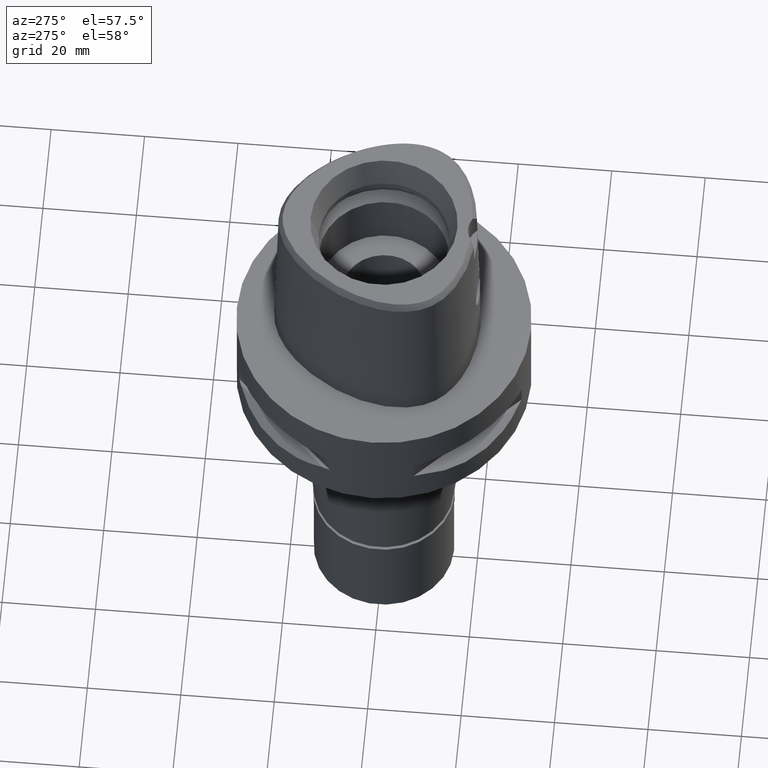
[diagram: clean part render]
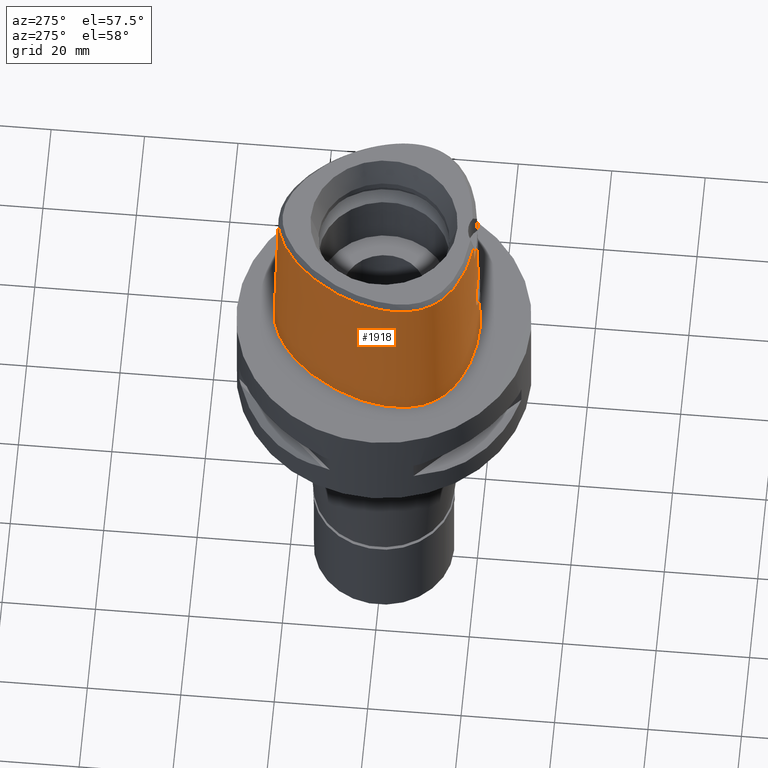
[diagram: same view with one face highlighted and labeled with its STEP entity id]
A machine part, auxiliary view. The second image highlights one B-rep face of the part: STEP entity #1918.
In plain terms, the highlighted face is a freeform B-spline surface patch.
Its self-contained STEP definition (entity closure, byte-faithful):
#20 = CARTESIAN_POINT ( 'NONE',  ( -3.520475118946976512, -20.16064927175088783, 13.49656734865700791 ) ) ;
#43 = CARTESIAN_POINT ( 'NONE',  ( -3.848403410397718716, -20.04310851184500208, 16.79149714040716290 ) ) ;
#56 = EDGE_CURVE ( 'NONE', #2543, #1512, #4088, .T. ) ;
#73 = CARTESIAN_POINT ( 'NONE',  ( -3.686560471764692259, -20.05088322548417423, 17.17709135335521253 ) ) ;
#98 = CARTESIAN_POINT ( 'NONE',  ( -2.852856104025950579, -20.09931387729060859, 18.37467926461776457 ) ) ;
#117 = CARTESIAN_POINT ( 'NONE',  ( -18.58171406201999787, -14.18198046186000028, -0.7304374680613000548 ) ) ;
#147 = CARTESIAN_POINT ( 'NONE',  ( -1.886862291950999859, -20.71358859382999640, -0.7304374680613000548 ) ) ;
#151 = CARTESIAN_POINT ( 'NONE',  ( -0.5985508230240998984, 23.20171286479000017, 11.93047864500000088 ) ) ;
#170 = CARTESIAN_POINT ( 'NONE',  ( -1.836486906114000117, -19.76356485051999812, 37.25231087112999973 ) ) ;
#194 = CARTESIAN_POINT ( 'NONE',  ( -19.81622840150000187, -11.44090480076000027, 24.59139475806000164 ) ) ;
#196 = CARTESIAN_POINT ( 'NONE',  ( -1.592612062464774825, -20.34460894491120087, 11.77623291199194355 ) ) ;
#210 = EDGE_CURVE ( 'NONE', #2037, #1228, #1054, .T. ) ;
#223 = CARTESIAN_POINT ( 'NONE',  ( -14.52531267946000071, -16.95413756377999803, 11.93047864500000088 ) ) ;
#228 = CARTESIAN_POINT ( 'NONE',  ( -1.574545528900000111E-11, 22.56201468012000078, 36.52186680743999858 ) ) ;
#249 = CARTESIAN_POINT ( 'NONE',  ( -21.97832646824619829, -0.2810937516994880814, 3.885600670697989673E-07 ) ) ;
#252 = CARTESIAN_POINT ( 'NONE',  ( -10.75753573473999936, 19.18839675345000018, -0.7304374680613000548 ) ) ;
#256 = CARTESIAN_POINT ( 'NONE',  ( 0.0000000000000000000, -20.18628283968999781, 19.55000000000000071 ) ) ;
#260 = EDGE_CURVE ( 'NONE', #941, #4048, #4864, .T. ) ;
#264 = ORIENTED_EDGE ( 'NONE', *, *, #2806, .F. ) ;
#330 = CARTESIAN_POINT ( 'NONE',  ( -20.09619618741216840, -10.23243843868544189, 36.52186244848004293 ) ) ;
#349 = CARTESIAN_POINT ( 'NONE',  ( -18.90964971338053147, -12.28759719904723369, 36.52186244848004293 ) ) ;
#375 = CARTESIAN_POINT ( 'NONE',  ( -4.050018014422889223, -20.05167593067619691, 15.52805627100407548 ) ) ;
#402 = CARTESIAN_POINT ( 'NONE',  ( -3.748882549353985016, -20.12487725615871881, 13.96753193210201438 ) ) ;
#427 = CARTESIAN_POINT ( 'NONE',  ( -4.049663826248561804, -20.05088590020227457, 15.56119206774791053 ) ) ;
#448 = CARTESIAN_POINT ( 'NONE',  ( -2.823299992937055691, -20.10104229143708565, 18.40378355436299174 ) ) ;
#473 = CARTESIAN_POINT ( 'NONE',  ( -1.533377486156251246, -20.16026360294686981, 19.24851053760684749 ) ) ;
#493 = CARTESIAN_POINT ( 'NONE',  ( -20.07948520509000190, -10.22500076556000081, 37.25231087112999973 ) ) ;
#514 = CARTESIAN_POINT ( 'NONE',  ( -16.77374388856000209, -15.44292480528000056, 11.93047864500000088 ) ) ;
#538 = EDGE_CURVE ( 'NONE', #1228, #2155, #3386, .T. ) ;
#542 = CARTESIAN_POINT ( 'NONE',  ( -11.13012658785000042, -18.61140124925999828, 11.93047864500000088 ) ) ;
#567 = CARTESIAN_POINT ( 'NONE',  ( -19.86834450654999884, 4.339653738224999557, 37.25231087112999973 ) ) ;
#571 = CARTESIAN_POINT ( 'NONE',  ( -2.647727988100297303, -20.26593689667734566, 12.42012271607875640 ) ) ;
#592 = CARTESIAN_POINT ( 'NONE',  ( -6.344715575757000181, -20.31619964444000104, -0.7304374680613000548 ) ) ;
#620 = CARTESIAN_POINT ( 'NONE',  ( -18.06826687681904176, 10.43171874512409936, 3.885600670697989673E-07 ) ) ;
#625 = CARTESIAN_POINT ( 'NONE',  ( -4.750826278092000088, 21.65775820190999923, 37.25231087112999973 ) ) ;
#647 = CARTESIAN_POINT ( 'NONE',  ( -20.34961797713979337, -11.74885741700608222, 3.885600670697989673E-07 ) ) ;
#672 = CARTESIAN_POINT ( 'NONE',  ( -2.376843896518209931, 22.39422508474159201, 36.52186244848004293 ) ) ;
#699 = CARTESIAN_POINT ( 'NONE',  ( -21.07430010672547382, -0.4408303445193073600, 36.52186244848004293 ) ) ;
#713 = CARTESIAN_POINT ( 'NONE',  ( -14.40795638211908880, 15.64093749369347641, 3.885600670697989673E-07 ) ) ;
#738 = DIRECTION ( 'NONE',  ( -8.648272217531810680E-13, -0.02499051295360945474, -0.9996876883618780463 ) ) ;
#739 = CARTESIAN_POINT ( 'NONE',  ( -3.258446753581195843, -20.07522384658359016, 17.91983021284886846 ) ) ;
#766 = CARTESIAN_POINT ( 'NONE',  ( -1.517038990534186560, -20.16080850842839922, 19.25515252244159115 ) ) ;
#797 = CARTESIAN_POINT ( 'NONE',  ( -3.623054736480679328, -20.05423874947347684, 17.31100359227539087 ) ) ;
#820 = CARTESIAN_POINT ( 'NONE',  ( -1.656252726929893448, -20.15609978928698354, 19.19765142506412658 ) ) ;
#847 = CARTESIAN_POINT ( 'NONE',  ( -3.649474620159721017, -20.05281468735726591, 17.25706831817002396 ) ) ;
#869 = CARTESIAN_POINT ( 'NONE',  ( -17.25769872667000016, 9.963736656807000713, 37.25231087112999973 ) ) ;
#892 = CARTESIAN_POINT ( 'NONE',  ( -11.23887130070999874, -18.91049775515000064, -0.7304374680613000548 ) ) ;
#894 = CARTESIAN_POINT ( 'NONE',  ( -3.024127618929793648, -20.22444760030290212, 12.80466032897619222 ) ) ;
#915 = CARTESIAN_POINT ( 'NONE',  ( -16.97022730782000366, -15.69280482697000068, -0.7304374680613000548 ) ) ;
#917 = CARTESIAN_POINT ( 'NONE',  ( -1.678454493247613311, -20.33967188086282363, 11.81405957882466673 ) ) ;
#941 = VERTEX_POINT ( 'NONE', #2462 ) ;
#948 = CARTESIAN_POINT ( 'NONE',  ( -20.96392263605000039, -8.820258354626000497, 24.59139475806000164 ) ) ;
#951 = CARTESIAN_POINT ( 'NONE',  ( -3.215358272887881341, -20.20174660046962245, 13.03391498473813748 ) ) ;
#952 = CARTESIAN_POINT ( 'NONE',  ( 0.4569144609274999880, 22.85341810850000144, 24.59139475806000164 ) ) ;
#970 = CARTESIAN_POINT ( 'NONE',  ( 2.041042029990999821E-08, -19.88004246002000031, 31.80000004972000127 ) ) ;
#973 = CARTESIAN_POINT ( 'NONE',  ( -16.38077705003999895, -14.94316476189000120, 37.25231087112999973 ) ) ;
#977 = CARTESIAN_POINT ( 'NONE',  ( -0.5821289336299999562, 22.88453108559999905, 24.59139475806000164 ) ) ;
#1025 = CARTESIAN_POINT ( 'NONE',  ( -16.95889171990959809, -15.67838866420374266, 3.885600670697989673E-07 ) ) ;
#1048 = CARTESIAN_POINT ( 'NONE',  ( -2.113823672487484373, -20.67499999028822799, 3.885600670697989673E-07 ) ) ;
#1054 = B_SPLINE_CURVE_WITH_KNOTS ( 'NONE', 3,
 ( #1807, #3430, #1075, #1836, #4526, #3362, #1102, #349, #3339, #330, #1877, #2580, #4172, #699, #4977, #1857, #1502, #4113, #3391, #4475, #672, #4150, #1433 ),
 .UNSPECIFIED., .F., .F.,
 ( 4, 1, 1, 1, 1, 1, 1, 1, 1, 1, 1, 1, 1, 1, 1, 1, 1, 1, 1, 1, 4 ),
 ( 0.0000000000000000000, 0.03580973941716571185, 0.1234633994701219151, 0.1672902294965474546, 0.2111170595229729940, 0.2549438895495037549, 0.2768573045627165108, 0.2987707195758241285, 0.3206841345891420225, 0.3425975496023548894, 0.3864243796287802901, 0.4302512096552058574, 0.4740780396816314246, 0.5617316997345875862, 0.6493853597875438588, 0.7370390198403948823, 0.8246926798932460168, 0.8685195099196715285, 0.9123463399461285706, 0.9561731699725646294, 1.000000000000000000 ),
 .UNSPECIFIED. ) ;
#1075 = CARTESIAN_POINT ( 'NONE',  ( -7.300578999876935704, -19.07170748891635270, 36.52186244848004293 ) ) ;
#1102 = CARTESIAN_POINT ( 'NONE',  ( -17.90324032096463114, -13.53935111954962700, 36.52186244848004293 ) ) ;
#1124 = B_SPLINE_CURVE_WITH_KNOTS ( 'NONE', 3,
 ( #3883, #1851, #3353, #4948, #1466, #4877, #713, #620, #4565, #249, #3018, #1781, #2950, #4519, #647, #2207, #4491, #1025, #2185, #2573, #4127, #1048, #3742 ),
 .UNSPECIFIED., .F., .F.,
 ( 4, 1, 1, 1, 1, 1, 1, 1, 1, 1, 1, 1, 1, 1, 1, 1, 1, 1, 1, 1, 4 ),
 ( 0.0000000000000000000, 0.04166666666755999837, 0.08333333333417000666, 0.1250000000007999990, 0.1666666666674000152, 0.2500000000006000200, 0.3333333333337999971, 0.4166666666671000052, 0.5000000000004000134, 0.5416666666670000296, 0.5833333333336000459, 0.6250000000001999512, 0.6458333333335000148, 0.6666666666668999985, 0.6875000000001000311, 0.7083333333333999837, 0.7500000000001000311, 0.7916666666667000474, 0.8333333333333000637, 0.9166666666666000163, 1.000000000000000000 ),
 .UNSPECIFIED. ) ;
#1125 = CARTESIAN_POINT ( 'NONE',  ( -4.038031914720375148, -20.04584209172325515, 15.81781984753358117 ) ) ;
#1147 = CARTESIAN_POINT ( 'NONE',  ( -3.704467467890589560, -20.04996865237293591, 17.13733399074684627 ) ) ;
#1161 = ORIENTED_EDGE ( 'NONE', *, *, #56, .T. ) ;
#1173 = CARTESIAN_POINT ( 'NONE',  ( -3.438474044887640524, -20.17226853620277893, 13.35950353148250613 ) ) ;
#1183 = ORIENTED_EDGE ( 'NONE', *, *, #260, .F. ) ;
#1201 = CARTESIAN_POINT ( 'NONE',  ( -1.492522727690081652, -20.16161937968068329, 19.26502569008682286 ) ) ;
#1211 = CARTESIAN_POINT ( 'NONE',  ( -3.637738201363999835, -19.56971413236999879, 36.52186244848000030 ) ) ;
#1223 = CARTESIAN_POINT ( 'NONE',  ( -2.360389010911050800, -20.12578017861218882, 18.79373387522195316 ) ) ;
#1228 = VERTEX_POINT ( 'NONE', #4660 ) ;
#1243 = CARTESIAN_POINT ( 'NONE',  ( -22.26285556008000199, -4.100361500079999999, -0.7304374680613000548 ) ) ;
#1249 = CARTESIAN_POINT ( 'NONE',  ( -1.975954942183464347, -20.32065689222574889, 11.96260358355354825 ) ) ;
#1270 = CARTESIAN_POINT ( 'NONE',  ( -16.57726046929999697, -15.19304478357999955, 24.59139475806000164 ) ) ;
#1275 = CARTESIAN_POINT ( 'NONE',  ( 0.4823619555376999490, 23.48603817685999928, -0.7304374680613000548 ) ) ;
#1294 = CARTESIAN_POINT ( 'NONE',  ( -21.57281238754000086, -9.001246193674999674, -0.7304374680613000548 ) ) ;
#1319 = CARTESIAN_POINT ( 'NONE',  ( -21.99640701070999782, -0.2778990171513999741, -0.7304374680613000548 ) ) ;
#1321 = CARTESIAN_POINT ( 'NONE',  ( -0.5047993661862985038, -20.38876923347999792, 11.44999999999999929 ) ) ;
#1349 = CARTESIAN_POINT ( 'NONE',  ( -20.16779751908000051, 4.447573709547000043, 24.59139475806000164 ) ) ;
#1351 = CARTESIAN_POINT ( 'NONE',  ( -2.904838724128466332, -20.23782704190360349, 12.67778573503113293 ) ) ;
#1378 = DIRECTION ( 'NONE',  ( 2.016568643993959699E-12, 0.02499051290953949525, -0.9996876883629797206 ) ) ;
#1400 = CARTESIAN_POINT ( 'NONE',  ( -5.105252914130000264, 22.54305023747000192, -0.7304374680613000548 ) ) ;
#1405 = CARTESIAN_POINT ( 'NONE',  ( -0.8941136475798195926, -20.17742596329177474, 19.45229334933474519 ) ) ;
#1433 = CARTESIAN_POINT ( 'NONE',  ( -1.574545528900000111E-11, 22.56201468012000078, 36.52186680743999858 ) ) ;
#1466 = CARTESIAN_POINT ( 'NONE',  ( -7.571159429429436649, 21.31457030409382014, 3.885600670697989673E-07 ) ) ;
#1502 = CARTESIAN_POINT ( 'NONE',  ( -13.70645028111149344, 15.04851272300912335, 36.52186244848004293 ) ) ;
#1509 = CARTESIAN_POINT ( 'NONE',  ( 6.819697653479363616E-09, -19.98212988583497207, 27.71666688228305730 ) ) ;
#1512 = VERTEX_POINT ( 'NONE', #4674 ) ;
#1527 = CARTESIAN_POINT ( 'NONE',  ( -2.187955111052514390, -20.13397228737158784, 18.90818030783675852 ) ) ;
#1550 = CARTESIAN_POINT ( 'NONE',  ( -3.466483550186856721, -20.16833646136317881, 13.40542637771266321 ) ) ;
#1575 = CARTESIAN_POINT ( 'NONE',  ( -1.320565687276267886, -20.16697761691574087, 19.32976498245970376 ) ) ;
#1604 = CARTESIAN_POINT ( 'NONE',  ( -3.732557508995177908, -20.04859144260194626, 17.07180291399460259 ) ) ;
#1628 = CARTESIAN_POINT ( 'NONE',  ( -1.411580633884000040E-12, -20.38876923348000147, 11.44999999999999929 ) ) ;
#1650 = CARTESIAN_POINT ( 'NONE',  ( -18.08416037858000180, 10.44089486947999923, -0.7304374680613000548 ) ) ;
#1654 = CARTESIAN_POINT ( 'NONE',  ( 0.7042335330635999258, 23.15549829226000256, 11.93047864500000088 ) ) ;
#1681 = CARTESIAN_POINT ( 'NONE',  ( -20.46725053161000218, 4.555493680868999640, 11.93047864500000088 ) ) ;
#1685 = CARTESIAN_POINT ( 'NONE',  ( -1.758544761670471024, -20.33485355119347560, 11.85123508312324958 ) ) ;
#1705 = CARTESIAN_POINT ( 'NONE',  ( -14.17879765875000153, 15.44741201480000115, 11.93047864500000088 ) ) ;
#1712 = CARTESIAN_POINT ( 'NONE',  ( -1.251533273950077296, -19.88005341380023339, 31.80000012753034966 ) ) ;
#1730 = CARTESIAN_POINT ( 'NONE',  ( -17.53318594397000396, 10.12278939435999980, 24.59139475806000164 ) ) ;
#1735 = CARTESIAN_POINT ( 'NONE',  ( -2.503210923952999600, 22.99958948125999925, 11.93047864500000088 ) ) ;
#1757 = CARTESIAN_POINT ( 'NONE',  ( 0.4520368093029999979, -20.37458469269000005, 11.93047864500000088 ) ) ;
#1781 = CARTESIAN_POINT ( 'NONE',  ( -22.05732873356693347, -6.847636717361496927, 3.885600670697989673E-07 ) ) ;
#1784 = CARTESIAN_POINT ( 'NONE',  ( -10.34823249778999887, 18.70095513388999819, 24.59139475806000164 ) ) ;
#1788 = CARTESIAN_POINT ( 'NONE',  ( -0.2473412322782438943, -20.18628283969000492, 19.55000000000000071 ) ) ;
#1807 = CARTESIAN_POINT ( 'NONE',  ( -3.637738201363999835, -19.56971413236999879, 36.52186244848000030 ) ) ;
#1836 = CARTESIAN_POINT ( 'NONE',  ( -10.91891098965328055, -18.03046406390440026, 36.52186244848004293 ) ) ;
#1851 = CARTESIAN_POINT ( 'NONE',  ( -0.8548392416113345105, 23.47499999029279394, 3.885600670697989673E-07 ) ) ;
#1856 = LINE ( 'NONE', #4524, #2150 ) ;
#1857 = CARTESIAN_POINT ( 'NONE',  ( -17.27359245833522294, 9.972912913898216658, 36.52186244848004293 ) ) ;
#1867 = EDGE_LOOP ( 'NONE', ( #264, #1183, #4141, #1161, #4744, #3346, #4327, #4246 ) ) ;
#1877 = CARTESIAN_POINT ( 'NONE',  ( -20.67704215116155453, -8.734985316449400017, 36.52186244848004293 ) ) ;
#1905 = CARTESIAN_POINT ( 'NONE',  ( -3.765489374950850010, -20.12204791086956490, 14.00864527312965357 ) ) ;
#1918 = ADVANCED_FACE ( 'NONE', ( #3584 ), #3959, .T. ) ;
#1930 = CARTESIAN_POINT ( 'NONE',  ( -3.646271025386285114, -20.14180172674243963, 13.73229968810705692 ) ) ;
#1953 = EDGE_CURVE ( 'NONE', #2155, #4624, #1124, .T. ) ;
#1954 = CARTESIAN_POINT ( 'NONE',  ( -3.408875187705912690, -20.17633333109256100, 13.31312751153962637 ) ) ;
#1981 = CARTESIAN_POINT ( 'NONE',  ( -3.740129524201758038, -20.04822853724978415, 17.05370687140962715 ) ) ;
#2008 = CARTESIAN_POINT ( 'NONE',  ( -1.768917262173088201, -20.15190475906379319, 19.14568281053183441 ) ) ;
#2030 = CARTESIAN_POINT ( 'NONE',  ( -21.36961520539000148, -0.3886497559040000271, 24.59139475806000164 ) ) ;
#2032 = CARTESIAN_POINT ( 'NONE',  ( -3.388781880796851276, -20.17907268769689821, 13.28211842279060129 ) ) ;
#2037 = VERTEX_POINT ( 'NONE', #1211 ) ;
#2056 = CARTESIAN_POINT ( 'NONE',  ( -6.288476595636000255, -20.00290580763000392, 11.93047864500000088 ) ) ;
#2084 = CARTESIAN_POINT ( 'NONE',  ( -11.02138187498999855, -18.31230474335999858, 24.59139475806000164 ) ) ;
#2109 = CARTESIAN_POINT ( 'NONE',  ( -21.44619314112999930, -6.759806580765000739, 24.59139475806000164 ) ) ;
#2112 = CARTESIAN_POINT ( 'NONE',  ( -1.572984596531324719, -20.34569619827913911, 11.76794029727372859 ) ) ;
#2134 = CARTESIAN_POINT ( 'NONE',  ( -14.42198651596000047, 15.65278599908999979, -0.7304374680613000548 ) ) ;
#2150 = VECTOR ( 'NONE', #738, 1000.000000000000114 ) ;
#2155 = VERTEX_POINT ( 'NONE', #2431 ) ;
#2164 = CARTESIAN_POINT ( 'NONE',  ( -10.14358087931999997, 18.45723432412000165, 37.25231087112999973 ) ) ;
#2185 = CARTESIAN_POINT ( 'NONE',  ( -14.67337963937592349, -17.21410155403621545, 3.885600670697989673E-07 ) ) ;
#2192 = CARTESIAN_POINT ( 'NONE',  ( -1.025211814385354359, -20.17465818941732891, 19.42048404905330727 ) ) ;
#2207 = CARTESIAN_POINT ( 'NONE',  ( -19.64947365076566754, -12.82525390053001679, 3.885600670697989673E-07 ) ) ;
#2281 = CARTESIAN_POINT ( 'NONE',  ( -4.027530768679777218, -20.06783249596159990, 14.99855479655601087 ) ) ;
#2311 = CARTESIAN_POINT ( 'NONE',  ( -2.841055161952163122, -20.10000556631501922, 18.38634273630946225 ) ) ;
#2324 = CARTESIAN_POINT ( 'NONE',  ( 0.6840430852549000962, -20.68668154458000075, -0.7304374680613000548 ) ) ;
#2338 = CARTESIAN_POINT ( 'NONE',  ( -2.781497320434850984, -20.10345565782015953, 18.44409576488487801 ) ) ;
#2362 = CARTESIAN_POINT ( 'NONE',  ( -2.467128207655710170, -20.12044499745018911, 18.71456023906526056 ) ) ;
#2393 = CARTESIAN_POINT ( 'NONE',  ( -3.925407708630972881, -20.04099055260220297, 16.53138977182821279 ) ) ;
#2419 = CARTESIAN_POINT ( 'NONE',  ( -21.26836751179000018, -8.910752274150000929, 11.93047864500000088 ) ) ;
#2431 = CARTESIAN_POINT ( 'NONE',  ( 5.792640471420000553E-11, 23.47499999999000053, 1.459943277381999819E-13 ) ) ;
#2443 = CARTESIAN_POINT ( 'NONE',  ( -20.76670354412999941, 4.663413652192000214, -0.7304374680613000548 ) ) ;
#2445 = CARTESIAN_POINT ( 'NONE',  ( -1.559921522257952331, -20.34641501698343902, 11.76246137009467851 ) ) ;
#2462 = CARTESIAN_POINT ( 'NONE',  ( 0.0000000000000000000, -20.18628283968999781, 19.55000000000000071 ) ) ;
#2466 = CARTESIAN_POINT ( 'NONE',  ( -14.68244496857000136, -17.23001772569000067, -0.7304374680613000548 ) ) ;
#2477 = CARTESIAN_POINT ( 'NONE',  ( -2.503154198992945556, -19.81241979316309809, 31.80000012753034966 ) ) ;
#2496 = CARTESIAN_POINT ( 'NONE',  ( -21.68301110805000320, -0.3332743865277000284, 11.93047864500000088 ) ) ;
#2500 = CARTESIAN_POINT ( 'NONE',  ( 0.4441907136224000352, 22.53710807432000252, 37.25231087112999973 ) ) ;
#2518 = CARTESIAN_POINT ( 'NONE',  ( -19.54161198198000093, -11.28235493642000087, 37.25231087112999973 ) ) ;
#2543 = VERTEX_POINT ( 'NONE', #3316 ) ;
#2546 = CARTESIAN_POINT ( 'NONE',  ( -7.580410837477000285, 21.33037925832999804, -0.7304374680613000548 ) ) ;
#2573 = CARTESIAN_POINT ( 'NONE',  ( -11.23259756393842501, -18.89324217832330177, 3.885600670697989673E-07 ) ) ;
#2580 = CARTESIAN_POINT ( 'NONE',  ( -21.14970188363580661, -6.717195958887920426, 36.52186244848004293 ) ) ;
#2671 = CARTESIAN_POINT ( 'NONE',  ( -3.921269265875852561, -20.09311890564765335, 14.47775228275580695 ) ) ;
#2690 = CARTESIAN_POINT ( 'NONE',  ( -1.543048130381289074, -20.15993798682084304, 19.24453660913574282 ) ) ;
#2723 = CARTESIAN_POINT ( 'NONE',  ( -2.141634863663406829, -20.13611892945428750, 18.93776449056395350 ) ) ;
#2749 = CARTESIAN_POINT ( 'NONE',  ( -1.944872162933173998, -20.14473830020671130, 19.05307826098763968 ) ) ;
#2774 = CARTESIAN_POINT ( 'NONE',  ( -4.001055636210809396, -20.04208398455349993, 16.14154222857777654 ) ) ;
#2777 = CARTESIAN_POINT ( 'NONE',  ( -1.131694588379999952E-11, -20.67499999999999716, 1.488068927338999721E-13 ) ) ;
#2795 = CARTESIAN_POINT ( 'NONE',  ( -20.65879057090999993, -10.48283623374000051, 11.93047864500000088 ) ) ;
#2799 = CARTESIAN_POINT ( 'NONE',  ( -1.638635025836545855, -20.34200884320555858, 11.79610711465278428 ) ) ;
#2806 = EDGE_CURVE ( 'NONE', #4048, #4624, #1856, .T. ) ;
#2824 = CARTESIAN_POINT ( 'NONE',  ( -21.62788420033999870, -4.104079497307999702, 24.59139475806000164 ) ) ;
#2827 = CARTESIAN_POINT ( 'NONE',  ( -1.035503055403206085, -20.37488775911207739, 11.54570873351795335 ) ) ;
#2834 = B_SPLINE_CURVE_WITH_KNOTS ( 'NONE', 3,
 ( #4654, #3906, #3566, #4330 ),
 .UNSPECIFIED., .F., .F.,
 ( 4, 4 ),
 ( 0.0000000000000000000, 1.000000000000000000 ),
 .UNSPECIFIED. ) ;
#2849 = CARTESIAN_POINT ( 'NONE',  ( -21.76083721349000299, -6.805026057747000756, 11.93047864500000088 ) ) ;
#2851 = CARTESIAN_POINT ( 'NONE',  ( -3.294464282139045075, -20.19175818983876525, 13.14063372506622684 ) ) ;
#2876 = CARTESIAN_POINT ( 'NONE',  ( -20.65947776029999972, -8.729764435102000064, 37.25231087112999973 ) ) ;
#2879 = CARTESIAN_POINT ( 'NONE',  ( -2.945118222696918142, -20.23335776654030127, 12.71958560101021085 ) ) ;
#2880 = CARTESIAN_POINT ( 'NONE',  ( 0.6658293095848000220, 22.52368303396000115, 37.25231087112999973 ) ) ;
#2905 = CARTESIAN_POINT ( 'NONE',  ( -18.89485300812999924, -12.27684390041000029, 37.25231087112999973 ) ) ;
#2948 = VECTOR ( 'NONE', #1378, 1000.000000000000227 ) ;
#2950 = CARTESIAN_POINT ( 'NONE',  ( -21.55524825074957107, -8.996025387848247235, 3.885600670697989673E-07 ) ) ;
#2955 = CARTESIAN_POINT ( 'NONE',  ( -7.420053183289000209, 21.05635753066999882, 11.93047864500000088 ) ) ;
#3000 = CARTESIAN_POINT ( 'NONE',  ( 0.4560943669427999780, -20.69106767951000236, -0.7304374680613000548 ) ) ;
#3018 = CARTESIAN_POINT ( 'NONE',  ( -22.24453906880549425, -4.100468750057090439, 3.885600670697989673E-07 ) ) ;
#3057 = CARTESIAN_POINT ( 'NONE',  ( -2.095753548414849732, -20.13818364214428058, 18.96577014705865949 ) ) ;
#3063 = CARTESIAN_POINT ( 'NONE',  ( 0.0000000000000000000, -20.18628283968999781, 19.55000000000000071 ) ) ;
#3079 = CARTESIAN_POINT ( 'NONE',  ( -3.738021026999548635, -20.04832921641929389, 17.05876513949583639 ) ) ;
#3098 = CARTESIAN_POINT ( 'NONE',  ( -3.474550157058655664, -20.06258684786188340, 17.58509941785007413 ) ) ;
#3132 = CARTESIAN_POINT ( 'NONE',  ( -3.081149392577402946, -20.08583124627778460, 18.14629112890300888 ) ) ;
#3157 = CARTESIAN_POINT ( 'NONE',  ( -2.857836109606428199, -20.09902107152585771, 18.36973246307252339 ) ) ;
#3178 = CARTESIAN_POINT ( 'NONE',  ( -20.36546124054000018, -11.75800452942999996, -0.7304374680613000548 ) ) ;
#3203 = CARTESIAN_POINT ( 'NONE',  ( -19.15132538607999990, -12.46323161480999886, 24.59139475806000164 ) ) ;
#3207 = CARTESIAN_POINT ( 'NONE',  ( -2.887412005234531787, -20.23974548682601693, 12.66003157092502107 ) ) ;
#3208 = CARTESIAN_POINT ( 'NONE',  ( 0.6850314213241999184, 22.83959066311000186, 24.59139475806000164 ) ) ;
#3230 = CARTESIAN_POINT ( 'NONE',  ( -13.93560880152999992, 15.24203803051000072, 24.59139475806000164 ) ) ;
#3234 = CARTESIAN_POINT ( 'NONE',  ( -2.568271204691999987, 23.31126237870000040, -0.7304374680613000548 ) ) ;
#3253 = CARTESIAN_POINT ( 'NONE',  ( -19.40779776403000056, -12.64961932921000098, 11.93047864500000088 ) ) ;
#3280 = CARTESIAN_POINT ( 'NONE',  ( -21.05621930272000242, -0.4440251252802999704, 37.25231087112999973 ) ) ;
#3284 = CARTESIAN_POINT ( 'NONE',  ( -2.438150643213000457, 22.68791658381999810, 24.59139475806000164 ) ) ;
#3316 = CARTESIAN_POINT ( 'NONE',  ( 2.041042029990999821E-08, -19.88004246002000031, 31.80000004972000127 ) ) ;
#3332 = CARTESIAN_POINT ( 'NONE',  ( 0.6718639866852000875, -20.05378907755000029, 24.59139475806000164 ) ) ;
#3335 = CARTESIAN_POINT ( 'NONE',  ( -4.868968490105000768, 21.95285554708999953, 24.59139475806000164 ) ) ;
#3339 = CARTESIAN_POINT ( 'NONE',  ( -19.55745547455832067, -11.29150218115996296, 36.52186244848004293 ) ) ;
#3346 = ORIENTED_EDGE ( 'NONE', *, *, #210, .T. ) ;
#3353 = CARTESIAN_POINT ( 'NONE',  ( -2.564517724960374778, 23.29328124043638581, 3.885600670697989673E-07 ) ) ;
#3362 = CARTESIAN_POINT ( 'NONE',  ( -16.39211280192347786, -14.95758113319088523, 36.52186244848004293 ) ) ;
#3383 = CARTESIAN_POINT ( 'NONE',  ( 0.6657744374003000676, -19.73734284402999961, 37.25231087112999973 ) ) ;
#3386 = LINE ( 'NONE', #228, #2948 ) ;
#3391 = CARTESIAN_POINT ( 'NONE',  ( -7.108589416785278559, 20.52412325828742468, 36.52186244848004293 ) ) ;
#3403 = CARTESIAN_POINT ( 'NONE',  ( 0.4479792516632999932, -20.05810170588000219, 24.59139475806000164 ) ) ;
#3430 = CARTESIAN_POINT ( 'NONE',  ( -4.467522189395160659, -19.48130287050652854, 36.52186244848004293 ) ) ;
#3458 = CARTESIAN_POINT ( 'NONE',  ( -3.755562140673627702, -20.12374194796139193, 13.98397501487714223 ) ) ;
#3476 = EDGE_CURVE ( 'NONE', #2543, #941, #4814, .T. ) ;
#3483 = CARTESIAN_POINT ( 'NONE',  ( -3.553766164806683392, -20.15576042543187896, 13.55638603583821400 ) ) ;
#3505 = CARTESIAN_POINT ( 'NONE',  ( -2.236225399044929674, -20.13170464962383122, 18.87669531694418623 ) ) ;
#3536 = CARTESIAN_POINT ( 'NONE',  ( -1.222079501498657184, -20.16967619644332643, 19.36182732690446073 ) ) ;
#3560 = CARTESIAN_POINT ( 'NONE',  ( -4.048193638326210930, -20.04945813672253863, 15.62509932612366192 ) ) ;
#3566 = CARTESIAN_POINT ( 'NONE',  ( -3.704239276368590961, -19.64128040965313460, 33.37395414949332917 ) ) ;
#3581 = CARTESIAN_POINT ( 'NONE',  ( -22.07548128586000047, -6.850245534728999885, -0.7304374680613000548 ) ) ;
#3584 = FACE_OUTER_BOUND ( 'NONE', #1867, .T. ) ;
#3607 = CARTESIAN_POINT ( 'NONE',  ( -6.175998635394000402, -19.37631813401999992, 37.25231087112999973 ) ) ;
#3612 = CARTESIAN_POINT ( 'NONE',  ( -0.6149727124180999205, 23.51889464398999863, -0.7304374680613000548 ) ) ;
#3617 = EDGE_CURVE ( 'NONE', #2037, #1512, #2834, .T. ) ;
#3636 = CARTESIAN_POINT ( 'NONE',  ( -1.853278701393000105, -20.08023943162000080, 24.59139475806000164 ) ) ;
#3659 = CARTESIAN_POINT ( 'NONE',  ( -13.69241994431999920, 15.03666404622000030, 37.25231087112999973 ) ) ;
#3663 = CARTESIAN_POINT ( 'NONE',  ( -1.411580633884000040E-12, -20.38876923348000147, 11.44999999999999929 ) ) ;
#3686 = CARTESIAN_POINT ( 'NONE',  ( -6.232237615515000329, -19.68961197083000059, 24.59139475806000164 ) ) ;
#3689 = CARTESIAN_POINT ( 'NONE',  ( -2.421503357378795407, -20.28648737493542598, 12.24279215500241769 ) ) ;
#3721 = CARTESIAN_POINT ( 'NONE',  ( -4.987110702117000471, 22.24795289228000073, 11.93047864500000088 ) ) ;
#3742 = CARTESIAN_POINT ( 'NONE',  ( -1.131694588379999952E-11, -20.67499999999999716, 1.488068927338999721E-13 ) ) ;
#3842 = CARTESIAN_POINT ( 'NONE',  ( -3.830499027160743530, -20.11062698623123524, 14.18153512545000616 ) ) ;
#3873 = CARTESIAN_POINT ( 'NONE',  ( -3.862607746693164312, -20.10460055501437537, 14.28038032243066446 ) ) ;
#3883 = CARTESIAN_POINT ( 'NONE',  ( 5.792640471420000553E-11, 23.47499999999000053, 1.459943277381999819E-13 ) ) ;
#3898 = CARTESIAN_POINT ( 'NONE',  ( -4.044848056823780347, -20.04744994059091923, 15.72117637690714709 ) ) ;
#3906 = CARTESIAN_POINT ( 'NONE',  ( -3.671249123513567802, -19.60525173594972514, 34.94790829898666829 ) ) ;
#3922 = CARTESIAN_POINT ( 'NONE',  ( -2.621021505588481126, -20.11233874864636562, 18.58822781674864544 ) ) ;
#3951 = CARTESIAN_POINT ( 'NONE',  ( -4.019649019913004828, -20.04316019033984730, 16.01163126943011505 ) ) ;
#3959 = B_SPLINE_SURFACE_WITH_KNOTS ( 'NONE', 3, 3, ( 
 ( #4755, #1654, #3208, #2880 ),
 ( #1275, #4373, #952, #2500 ),
 ( #3612, #151, #977, #4059 ),
 ( #3234, #1735, #3284, #4834 ),
 ( #1400, #3721, #3335, #625 ),
 ( #2546, #2955, #4496, #4106 ),
 ( #252, #4881, #1784, #2164 ),
 ( #2134, #1705, #3230, #3659 ),
 ( #1650, #4751, #1730, #869 ),
 ( #2443, #1681, #1349, #567 ),
 ( #1319, #2496, #2030, #3280 ),
 ( #1243, #4773, #2824, #4798 ),
 ( #3581, #2849, #2109, #4395 ),
 ( #1294, #2419, #948, #2876 ),
 ( #3972, #2795, #4077, #493 ),
 ( #3178, #4056, #194, #2518 ),
 ( #4422, #3253, #3203, #2905 ),
 ( #117, #3995, #4829, #4447 ),
 ( #915, #514, #1270, #973 ),
 ( #2466, #223, #4369, #4344 ),
 ( #892, #542, #2084, #4719 ),
 ( #592, #2056, #3686, #3607 ),
 ( #147, #4024, #3636, #170 ),
 ( #3000, #1757, #3403, #4541 ),
 ( #2324, #4187, #3332, #3383 ) ),
 .UNSPECIFIED., .F., .F., .F.,
 ( 4, 1, 1, 1, 1, 1, 1, 1, 1, 1, 1, 1, 1, 1, 1, 1, 1, 1, 1, 1, 1, 1, 4 ),
 ( 4, 4 ),
 ( -0.01173777939052999923, 0.0000000000000000000, 0.04166666666755999837, 0.08333333333417000666, 0.1250000000007999990, 0.1666666666674000152, 0.2500000000006000200, 0.3333333333337999971, 0.4166666666671000052, 0.5000000000004000134, 0.5416666666670000296, 0.5833333333336000459, 0.6250000000001999512, 0.6458333333335000148, 0.6666666666668999985, 0.6875000000001000311, 0.7083333333333999837, 0.7500000000001000311, 0.7916666666667000474, 0.8333333333333000637, 0.9166666666666000163, 1.000000000000000000, 1.008985696609000060 ),
 ( 6.962792439835000024E-09, 0.9999996448974999286 ),
 .UNSPECIFIED. ) ;
#3972 = CARTESIAN_POINT ( 'NONE',  ( -20.94844325381999894, -10.61175396783999858, -0.7304374680613000548 ) ) ;
#3995 = CARTESIAN_POINT ( 'NONE',  ( -18.35112161163000266, -13.96357042508000035, 11.93047864500000088 ) ) ;
#4024 = CARTESIAN_POINT ( 'NONE',  ( -1.870070496671999871, -20.39691401271999993, 11.93047864500000088 ) ) ;
#4038 = CARTESIAN_POINT ( 'NONE',  ( -3.736722311398999796, -19.67781602443999844, 31.80000000000000071 ) ) ;
#4048 = VERTEX_POINT ( 'NONE', #3663 ) ;
#4056 = CARTESIAN_POINT ( 'NONE',  ( -20.09084482101999924, -11.59945466508999878, 11.93047864500000088 ) ) ;
#4058 = CARTESIAN_POINT ( 'NONE',  ( -2.870809693610208324, -20.24156730632851620, 12.64324605246987687 ) ) ;
#4059 = CARTESIAN_POINT ( 'NONE',  ( -0.5657070442360000451, 22.56734930641000147, 37.25231087112999973 ) ) ;
#4077 = CARTESIAN_POINT ( 'NONE',  ( -20.36913788799999736, -10.35391849964999977, 24.59139475806000164 ) ) ;
#4079 = CARTESIAN_POINT ( 'NONE',  ( -1.554881956805001186, -20.34669101430225524, 11.76035872671680949 ) ) ;
#4088 = B_SPLINE_CURVE_WITH_KNOTS ( 'NONE', 3,
 ( #4402, #1712, #2477, #4038 ),
 .UNSPECIFIED., .F., .F.,
 ( 4, 4 ),
 ( 0.0000000000000000000, 1.000000000000000000 ),
 .UNSPECIFIED. ) ;
#4106 = CARTESIAN_POINT ( 'NONE',  ( -7.099337874912999169, 20.50831407536999862, 37.25231087112999973 ) ) ;
#4113 = CARTESIAN_POINT ( 'NONE',  ( -10.15538788053295782, 18.47129535094252262, 36.52186244848004293 ) ) ;
#4127 = CARTESIAN_POINT ( 'NONE',  ( -6.341471017485521777, -20.29812499039378793, 3.885600670697989673E-07 ) ) ;
#4141 = ORIENTED_EDGE ( 'NONE', *, *, #3476, .F. ) ;
#4150 = CARTESIAN_POINT ( 'NONE',  ( -0.7901461696976564975, 22.56201478746603684, 36.52186244848004293 ) ) ;
#4172 = CARTESIAN_POINT ( 'NONE',  ( -21.32871527669869138, -4.105831244394445356, 36.52186244848004293 ) ) ;
#4187 = CARTESIAN_POINT ( 'NONE',  ( 0.6779535359700000763, -20.37023531107000096, 11.93047864500000088 ) ) ;
#4216 = CARTESIAN_POINT ( 'NONE',  ( -3.788010122578853611, -20.11815763408451474, 14.06624340821270280 ) ) ;
#4240 = CARTESIAN_POINT ( 'NONE',  ( -1.435263460293925819, -20.16346600381253396, 19.28743623777244665 ) ) ;
#4246 = ORIENTED_EDGE ( 'NONE', *, *, #1953, .T. ) ;
#4272 = CARTESIAN_POINT ( 'NONE',  ( -2.696415149899703767, -20.10825975497923679, 18.52316981035091459 ) ) ;
#4297 = CARTESIAN_POINT ( 'NONE',  ( -2.218923952810183398, -20.13252298611806879, 18.88809933005988384 ) ) ;
#4320 = CARTESIAN_POINT ( 'NONE',  ( -2.004675599390202567, -20.14220382833397238, 19.01976680093375194 ) ) ;
#4327 = ORIENTED_EDGE ( 'NONE', *, *, #538, .T. ) ;
#4330 = CARTESIAN_POINT ( 'NONE',  ( -3.736722311398999796, -19.67781602443999844, 31.80000000000000071 ) ) ;
#4344 = CARTESIAN_POINT ( 'NONE',  ( -14.21104810123000028, -16.40237723998000163, 37.25231087112999973 ) ) ;
#4348 = CARTESIAN_POINT ( 'NONE',  ( -2.086814383338081669, -20.31269213283864872, 12.02647857451247404 ) ) ;
#4369 = CARTESIAN_POINT ( 'NONE',  ( -14.36818039035000005, -16.67825740187999983, 24.59139475806000164 ) ) ;
#4371 = CARTESIAN_POINT ( 'NONE',  ( -3.377353639916688355, -20.18061854612784600, 13.26476903757044568 ) ) ;
#4373 = CARTESIAN_POINT ( 'NONE',  ( 0.4696382082326000518, 23.16972814267999681, 11.93047864500000088 ) ) ;
#4395 = CARTESIAN_POINT ( 'NONE',  ( -21.13154906876000183, -6.714587103782999833, 37.25231087112999973 ) ) ;
#4398 = CARTESIAN_POINT ( 'NONE',  ( -1.812541018709926011, -20.33144879143542028, 11.87771303032865156 ) ) ;
#4402 = CARTESIAN_POINT ( 'NONE',  ( 2.041042029990999821E-08, -19.88004246002000031, 31.80000004972000127 ) ) ;
#4422 = CARTESIAN_POINT ( 'NONE',  ( -19.66427014197999767, -12.83600704362000045, -0.7304374680613000548 ) ) ;
#4447 = CARTESIAN_POINT ( 'NONE',  ( -17.88993671084999804, -13.52675035152999961, 37.25231087112999973 ) ) ;
#4449 = CARTESIAN_POINT ( 'NONE',  ( -2.875757950340810609, -20.24102512592879322, 12.64823125461289166 ) ) ;
#4463 = CARTESIAN_POINT ( 'NONE',  ( 6.839690409372270780E-09, -20.08420636276309779, 23.63333344114137446 ) ) ;
#4475 = CARTESIAN_POINT ( 'NONE',  ( -4.757642277158938171, 21.67478330407401543, 36.52186244848004293 ) ) ;
#4491 = CARTESIAN_POINT ( 'NONE',  ( -18.56841064434376065, -14.16937987611206751, 3.885600670697989673E-07 ) ) ;
#4496 = CARTESIAN_POINT ( 'NONE',  ( -7.259695529101000133, 20.78233580302000050, 24.59139475806000164 ) ) ;
#4519 = CARTESIAN_POINT ( 'NONE',  ( -20.93173251322428996, -10.60431640230086892, 3.885600670697989673E-07 ) ) ;
#4524 = CARTESIAN_POINT ( 'NONE',  ( -1.411580633884000040E-12, -20.38876923348000147, 11.44999999999999929 ) ) ;
#4526 = CARTESIAN_POINT ( 'NONE',  ( -14.22011356155766570, -16.41829364186597928, 36.52186244848004293 ) ) ;
#4541 = CARTESIAN_POINT ( 'NONE',  ( 0.4439216940234999575, -19.74161871907000076, 37.25231087112999973 ) ) ;
#4565 = CARTESIAN_POINT ( 'NONE',  ( -20.74942739960216542, 4.657187496688254491, 3.885600670697989673E-07 ) ) ;
#4599 = CARTESIAN_POINT ( 'NONE',  ( -3.952964639637181588, -20.08622609015915472, 14.60890045227376355 ) ) ;
#4618 = CARTESIAN_POINT ( 'NONE',  ( -3.698122373792616990, -20.13343971463959647, 13.84482020408002434 ) ) ;
#4624 = VERTEX_POINT ( 'NONE', #2777 ) ;
#4643 = CARTESIAN_POINT ( 'NONE',  ( -4.049848995936176088, -20.05861656952050609, 15.25314035234744736 ) ) ;
#4654 = CARTESIAN_POINT ( 'NONE',  ( -3.637738201363999835, -19.56971413236999879, 36.52186244848000030 ) ) ;
#4660 = CARTESIAN_POINT ( 'NONE',  ( -1.574545528900000111E-11, 22.56201468012000078, 36.52186680743999858 ) ) ;
#4672 = CARTESIAN_POINT ( 'NONE',  ( -3.538328569005045221, -20.05892019842456975, 17.47427695038982165 ) ) ;
#4674 = CARTESIAN_POINT ( 'NONE',  ( -3.736722311398999796, -19.67781602443999844, 31.80000000000000071 ) ) ;
#4695 = CARTESIAN_POINT ( 'NONE',  ( -3.724287987559094848, -20.04899117660409402, 17.09139312267861754 ) ) ;
#4719 = CARTESIAN_POINT ( 'NONE',  ( -10.91263716213000023, -18.01320823746999977, 37.25231087112999973 ) ) ;
#4721 = CARTESIAN_POINT ( 'NONE',  ( -3.089131642920632803, -20.21685897408097077, 12.88004451868197364 ) ) ;
#4744 = ORIENTED_EDGE ( 'NONE', *, *, #3617, .F. ) ;
#4751 = CARTESIAN_POINT ( 'NONE',  ( -17.80867316127000066, 10.28184213191999952, 11.93047864500000088 ) ) ;
#4755 = CARTESIAN_POINT ( 'NONE',  ( 0.7234356448029999331, 23.47140592140999615, -0.7304374680613000548 ) ) ;
#4773 = CARTESIAN_POINT ( 'NONE',  ( -21.94536988020999857, -4.102220498694000739, 11.93047864500000088 ) ) ;
#4798 = CARTESIAN_POINT ( 'NONE',  ( -21.31039852046999883, -4.105938495922999643, 37.25231087112999973 ) ) ;
#4814 = B_SPLINE_CURVE_WITH_KNOTS ( 'NONE', 3,
 ( #970, #1509, #4463, #3063 ),
 .UNSPECIFIED., .F., .F.,
 ( 4, 4 ),
 ( 0.0000000000000000000, 1.000000000000000000 ),
 .UNSPECIFIED. ) ;
#4829 = CARTESIAN_POINT ( 'NONE',  ( -18.12052916124000035, -13.74516038830999953, 24.59139475806000164 ) ) ;
#4834 = CARTESIAN_POINT ( 'NONE',  ( -2.373090362474000070, 22.37624368638000050, 37.25231087112999973 ) ) ;
#4864 = B_SPLINE_CURVE_WITH_KNOTS ( 'NONE', 3,
 ( #256, #1788, #4884, #1405, #2192, #3536, #1575, #4240, #1201, #766, #473, #2690, #820, #2008, #2749, #4320, #3057, #2723, #1527, #4297, #3505, #1223, #2362, #3922, #4272, #2338, #448, #2311, #98, #3157, #3132, #739, #3098, #4672, #797, #847, #73, #1147, #4695, #1604, #3079, #1981, #43, #2393, #2774, #3951, #1125, #3898, #3560, #427, #375, #4643, #2281, #4599, #2671, #3873, #3842, #4216, #1905, #3458, #402, #4999, #4618, #1930, #3483, #20, #1550, #1173, #1954, #2032, #4371, #2851, #951, #4721, #894, #2879, #1351, #3207, #4449, #4058, #571, #3689, #4348, #1249, #4398, #1685, #917, #2799, #196, #2112, #2445, #4079, #2827, #1321, #1628 ),
 .UNSPECIFIED., .F., .F.,
 ( 4, 2, 2, 1, 1, 1, 2, 2, 2, 2, 1, 2, 2, 2, 1, 1, 1, 2, 2, 2, 2, 2, 1, 1, 2, 2, 2, 2, 1, 2, 2, 2, 2, 1, 1, 1, 2, 2, 2, 2, 1, 2, 2, 2, 1, 1, 1, 2, 2, 2, 2, 2, 1, 1, 2, 2, 4 ),
 ( 0.0000000000000000000, 0.06249999999999665545, 0.09374999999999500400, 0.1093749999999940881, 0.1171874999999936301, 0.1210937499999934219, 0.1230468749999931721, 0.1249999999999929085, 0.1562499999999873712, 0.1718749999999843736, 0.1796874999999830691, 0.1835937499999823752, 0.1874999999999817091, 0.2187499999999794609, 0.2343749999999783229, 0.2421874999999780453, 0.2460937499999776290, 0.2480468749999773792, 0.2499999999999771294, 0.3124999999999688582, 0.3437499999999647504, 0.3593749999999630851, 0.3671874999999618083, 0.3710937499999611422, 0.3730468749999612532, 0.3749999999999614197, 0.4374999999999665823, 0.4687499999999691913, 0.4843749999999705236, 0.4921874999999716338, 0.4999999999999726885, 0.5624999999999831246, 0.5937499999999885647, 0.6093749999999912292, 0.6171874999999926725, 0.6210937499999933387, 0.6230468749999935607, 0.6249999999999937828, 0.6562499999999982236, 0.6718750000000003331, 0.6796875000000014433, 0.6835937500000019984, 0.6875000000000024425, 0.7187500000000049960, 0.7343750000000059952, 0.7421875000000065503, 0.7460937500000067724, 0.7480468750000068834, 0.7500000000000069944, 0.8125000000000104361, 0.8437500000000119904, 0.8593750000000127676, 0.8671875000000131006, 0.8710937500000131006, 0.8730468750000129896, 0.8750000000000128786, 1.000000000000000000 ),
 .UNSPECIFIED. ) ;
#4877 = CARTESIAN_POINT ( 'NONE',  ( -10.74572890431623406, 19.17433593002142800, 3.885600670697989673E-07 ) ) ;
#4881 = CARTESIAN_POINT ( 'NONE',  ( -10.55288411625999956, 18.94467594366999919, 11.93047864500000088 ) ) ;
#4884 = CARTESIAN_POINT ( 'NONE',  ( -0.5036866637249097778, -20.18406862059044826, 19.52728785669985356 ) ) ;
#4948 = CARTESIAN_POINT ( 'NONE',  ( -5.098437013657345140, 22.52602538157566059, 3.885600670697989673E-07 ) ) ;
#4977 = CARTESIAN_POINT ( 'NONE',  ( -19.88562090098361423, 4.345879983792112711, 36.52186244848004293 ) ) ;
#4999 = CARTESIAN_POINT ( 'NONE',  ( -3.744859968352565183, -20.12555785049274704, 13.95773689203759638 ) ) ;